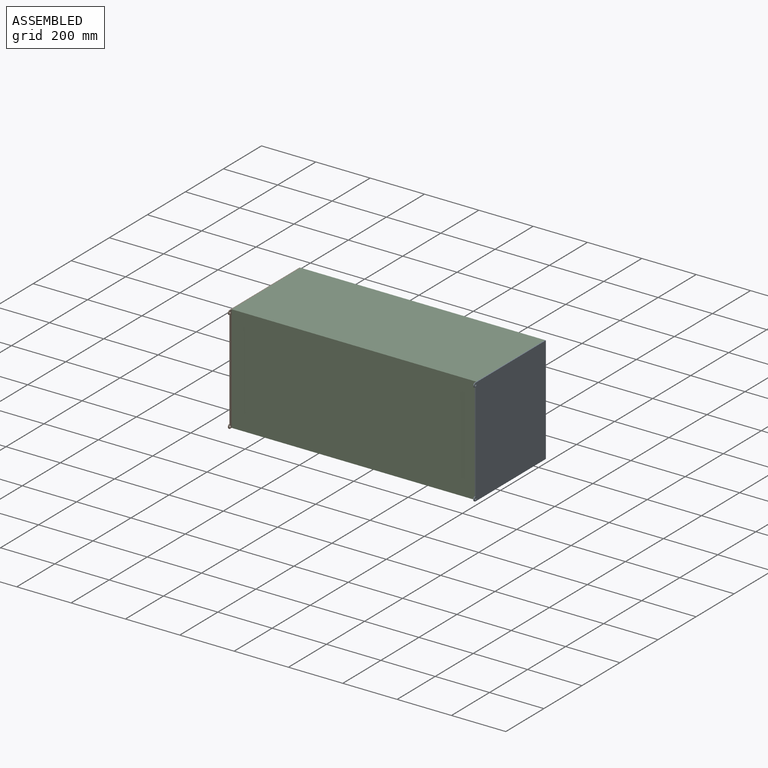
[diagram: assembled view]
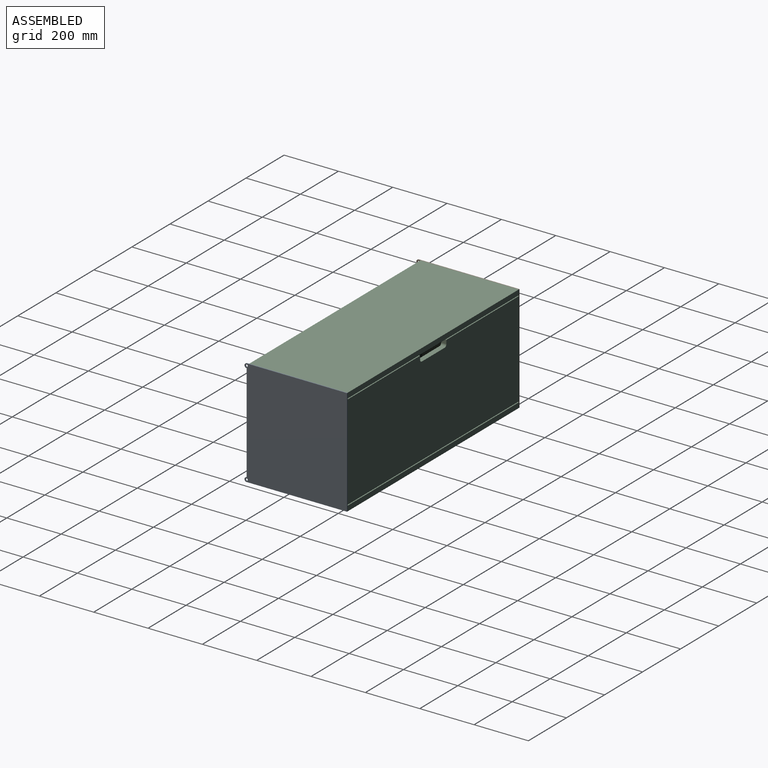
[diagram: assembled view, second angle]
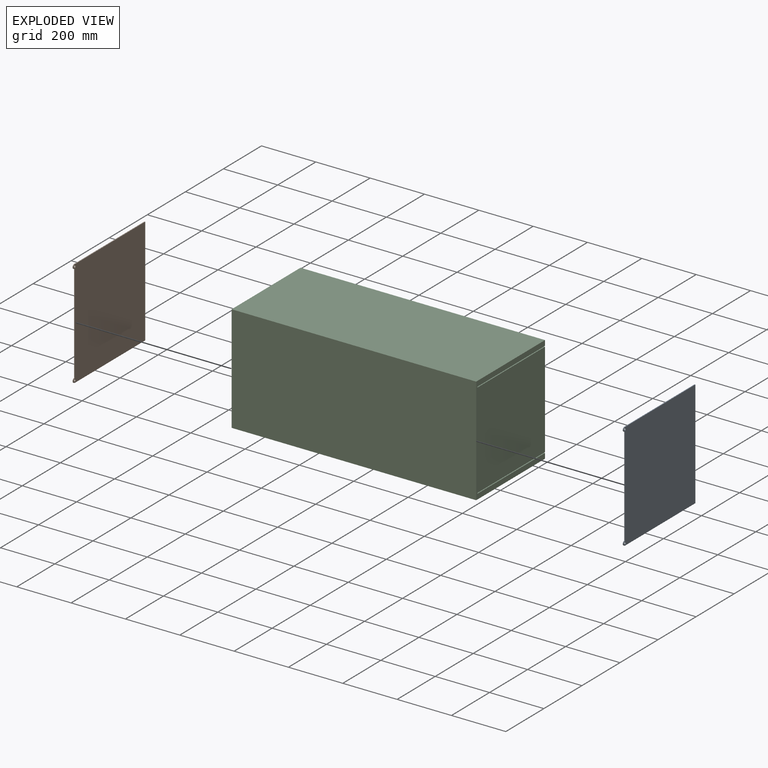
[diagram: exploded view]
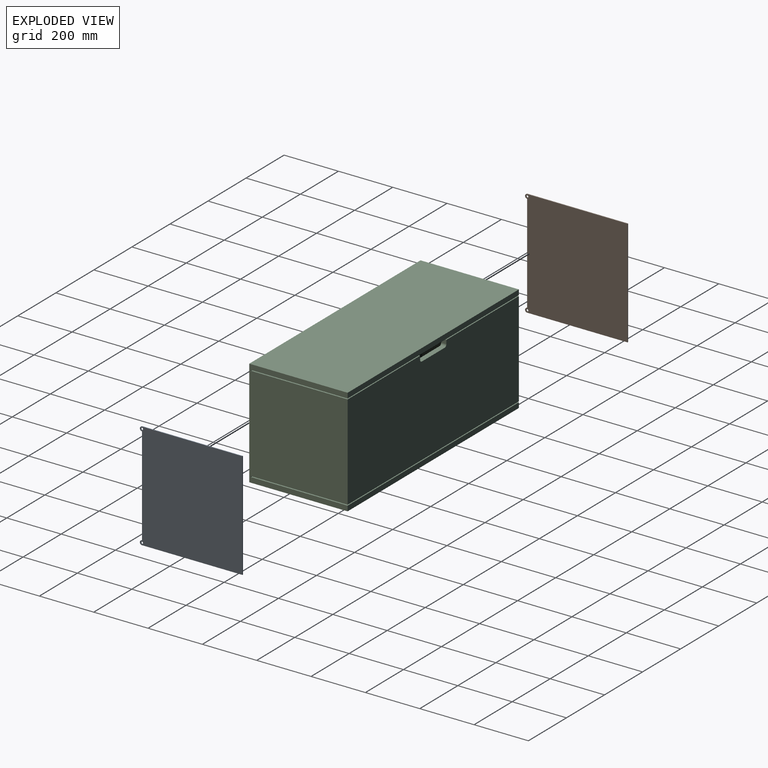
[diagram: exploded view, second angle]
ASSEMBLY  parts=3 mates=2
PART A: 10 faces, bbox 3.2x377.4x394.5 mm
  f0: cylinder r=7.87mm len=15.75mm, axis (-1,0,0), area 78.5mm2, adj f1,f7,f8,f9
  f1: plane 362.99x3.18mm, normal (0,-1,0), area 1152.5mm2, adj f0,f2,f8,f9
  f2: cylinder r=7.87mm len=15.75mm, axis (-1,0,0), area 78.5mm2, adj f1,f3,f8,f9
  f3: plane 369.49x3.18mm, normal (0,0,-1), area 1173.1mm2, adj f2,f4,f8,f9
  f4: plane 394.49x3.18mm, normal (0,1,0), area 1252.5mm2, adj f3,f7,f8,f9
  f5: cylinder r=4mm len=8mm, axis (-1,0,0), area 79.8mm2, adj f8,f9
  f6: cylinder r=4mm len=8mm, axis (-1,0,0), area 79.8mm2, adj f8,f9
  f7: plane 369.49x3.18mm, normal (0,0,1), area 1173.1mm2, adj f0,f4,f8,f9
  f8: plane 394.49x377.37mm, normal (1,0,0), area 145854.9mm2, adj f0,f1,f2,f3,f4,f5,f6,f7
  f9: plane 394.49x377.37mm, normal (-1,0,0), area 145854.9mm2, adj f0,f1,f2,f3,f4,f5,f6,f7
PART B: same geometry as A
PART C: 34 faces, bbox 900.1x362x394.5 mm
  f0: cylinder r=9mm len=12.7mm, axis (0,1,0), area 179.5mm2, adj f2,f9,f28,f31
  f1: cylinder r=9mm len=19.05mm, axis (0,1,0), area 269.3mm2, adj f3,f10,f11,f29
  f2: plane 13.83x12.7mm, normal (-1,0,0), area 175.6mm2, adj f0,f4,f28,f31
  f3: plane 19.05x13.83mm, normal (-1,0,0), area 263.4mm2, adj f1,f4,f11,f29
  f4: plane 381.14x355.6mm, normal (0,0,1), area 18270.6mm2, adj f2,f3,f11,f18,f28,f29,f31,f32
  f5: plane 13.83x12.7mm, normal (1,0,0), area 175.6mm2, adj f7,f26,f28,f31
  f6: plane 19.05x13.83mm, normal (1,0,0), area 263.4mm2, adj f8,f11,f26,f29
  f7: cylinder r=9mm len=12.7mm, axis (0,1,0), area 179.5mm2, adj f5,f9,f28,f31
  f8: cylinder r=9mm len=19.05mm, axis (0,1,0), area 269.3mm2, adj f6,f10,f11,f29
  f9: plane 120x12.7mm, normal (0,0,1), area 1524mm2, adj f0,f7,f28,f31
  f10: plane 120x19.05mm, normal (0,0,1), area 2286mm2, adj f1,f8,f11,f29
  f11: plane 900.11x350.15mm, normal (0,1,0), area 312062.7mm2, adj f1,f3,f4,f6,f8,f10,f13,f18
  f12: plane 900.11x19.06mm, normal (0,1,0), area 17152.7mm2, adj f13,f15,f18,f23,f25,f27
  f13: plane 394.49x361.95mm, normal (-1,0,0), area 140528.2mm2, adj f11,f12,f14,f15,f16,f17,f19,f20
  f14: plane 900.11x394.49mm, normal (0,-1,0), area 355083mm2, adj f13,f15,f17,f18
  f15: plane 900.11x361.95mm, normal (0,0,1), area 325795.7mm2, adj f12,f13,f14,f18
  f16: plane 900.11x18.93mm, normal (0,1,0), area 17040.2mm2, adj f13,f17,f18,f19
  f17: plane 900.11x361.95mm, normal (0,0,-1), area 325795.7mm2, adj f13,f14,f16,f18
  f18: plane 394.49x361.95mm, normal (1,0,0), area 140528.2mm2, adj f4,f11,f12,f14,f15,f16,f17,f19
  f19: plane 900.11x355.6mm, normal (0,0,1), area 320080mm2, adj f13,f16,f18,f21
  f20: plane 900.11x355.6mm, normal (0,0,-1), area 320080mm2, adj f11,f13,f18,f21
  f21: plane 900.11x3.17mm, normal (0,1,0), area 2857.5mm2, adj f13,f18,f19,f20
  f22: cylinder r=2.75mm len=355.6mm, axis (0,1,0), area 4.2mm2, adj f23,f27
  f23: plane 355.6x143.5mm, normal (0,0,-1), area 51028.6mm2, adj f12,f22,f24,f28
  f24: cylinder r=2.75mm len=355.6mm, axis (0,1,0), area 4.2mm2, adj f23,f25
  f25: plane 378.4x355.6mm, normal (0,0,-1), area 134560.3mm2, adj f12,f18,f24,f28
  f26: plane 380.97x355.6mm, normal (0,0,1), area 18265.2mm2, adj f5,f6,f11,f13,f28,f29,f30,f31
  f27: plane 378.23x355.6mm, normal (0,0,-1), area 134499.5mm2, adj f12,f13,f22,f28
  f28: plane 900.11x26mm, normal (0,1,0), area 5969.8mm2, adj f0,f2,f4,f5,f7,f9,f13,f18
  f29: plane 862.01x331.1mm, normal (0,-1,0), area 282300.5mm2, adj f1,f3,f4,f6,f8,f10,f26,f30
  f30: plane 331.1x323.85mm, normal (1,0,0), area 107228.2mm2, adj f26,f29,f31,f33
  f31: plane 862.01x331.1mm, normal (0,1,0), area 282300.5mm2, adj f0,f2,f4,f5,f7,f9,f26,f30
  f32: plane 331.1x323.85mm, normal (-1,0,0), area 107228.2mm2, adj f4,f29,f31,f33
  f33: plane 862.01x323.85mm, normal (0,0,1), area 279162.7mm2, adj f29,f30,f31,f32
PLACE A at identity
PLACE B t=(-903.29,0,0)mm
PLACE C t=(-1070.48,0,-2496.29)mm
MATE fastened B.f8 <-> C.f13  axis (1,0,0) through (-900.11,-8165.5,2931.01)mm
MATE fastened C.f18 <-> A.f9  axis (1,0,0) through (0,-8165.5,2931.01)mm
